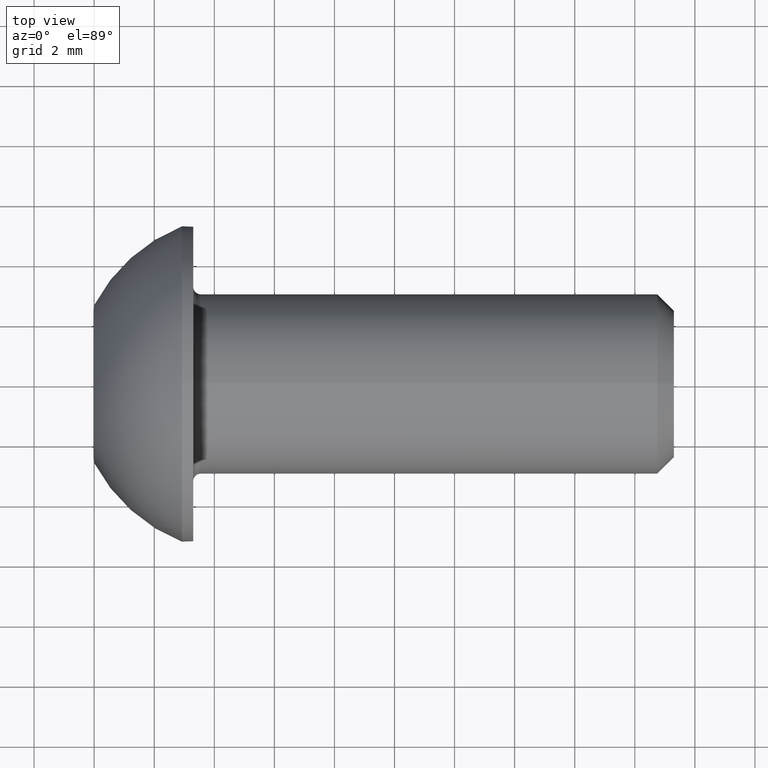
[diagram: clean part render]
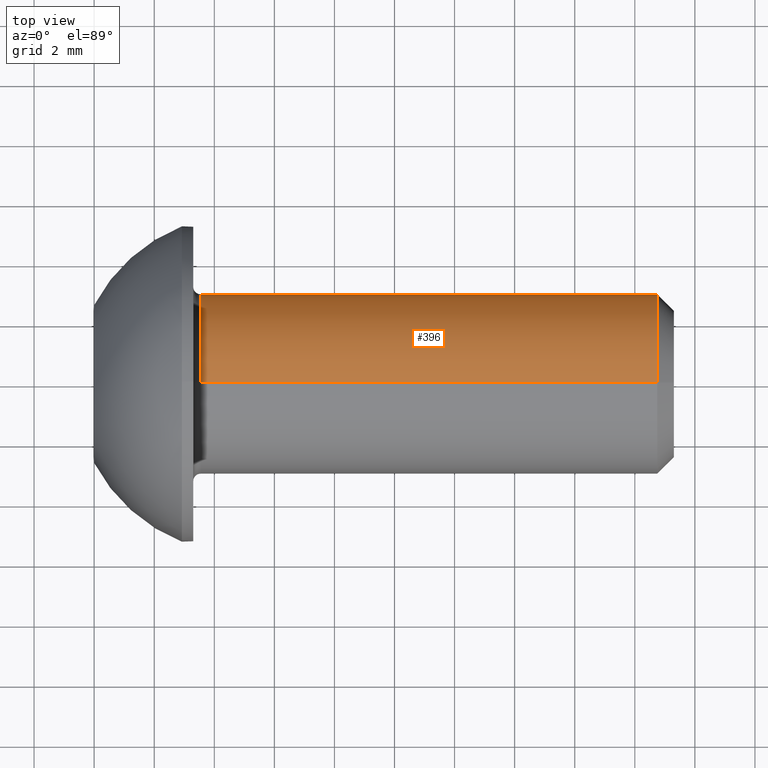
[diagram: same view with one face highlighted and labeled with its STEP entity id]
A machine part, top view. The second image highlights one B-rep face of the part: STEP entity #396.
In plain terms, the highlighted cylindrical surface (partial cylindrical patch) has radius 3 mm, axis along (-1, -0, -0).
Its self-contained STEP definition (entity closure, byte-faithful):
#41 = CYLINDRICAL_SURFACE ( 'NONE', #738, 2.999999999999992895 ) ;
#66 = CARTESIAN_POINT ( 'NONE',  ( 3.550000000000000266, 0.000000000000000000, 2.999999999999992895 ) ) ;
#83 = EDGE_CURVE ( 'NONE', #531, #268, #154, .T. ) ;
#104 = DIRECTION ( 'NONE',  ( 0.000000000000000000, 0.000000000000000000, 1.000000000000000000 ) ) ;
#129 = DIRECTION ( 'NONE',  ( 0.000000000000000000, 0.000000000000000000, 1.000000000000000000 ) ) ;
#138 = CARTESIAN_POINT ( 'NONE',  ( 18.74550000000001759, 3.673940397442050500E-16, -2.999999999999992450 ) ) ;
#145 = ORIENTED_EDGE ( 'NONE', *, *, #599, .F. ) ;
#154 = CIRCLE ( 'NONE', #700, 2.999999999999992895 ) ;
#189 = EDGE_LOOP ( 'NONE', ( #605, #752, #516, #145 ) ) ;
#223 = VERTEX_POINT ( 'NONE', #138 ) ;
#256 = DIRECTION ( 'NONE',  ( -1.000000000000000000, -0.000000000000000000, -0.000000000000000000 ) ) ;
#268 = VERTEX_POINT ( 'NONE', #66 ) ;
#275 = EDGE_CURVE ( 'NONE', #365, #223, #649, .T. ) ;
#279 = AXIS2_PLACEMENT_3D ( 'NONE', #501, #256, #129 ) ;
#322 = CARTESIAN_POINT ( 'NONE',  ( 3.550000000000000266, 0.000000000000000000, 0.000000000000000000 ) ) ;
#352 = DIRECTION ( 'NONE',  ( -1.000000000000000000, -0.000000000000000000, -0.000000000000000000 ) ) ;
#356 = CARTESIAN_POINT ( 'NONE',  ( 0.000000000000000000, 0.000000000000000000, 2.999999999999992895 ) ) ;
#365 = VERTEX_POINT ( 'NONE', #580 ) ;
#396 = ADVANCED_FACE ( 'NONE', ( #520 ), #41, .T. ) ;
#415 = EDGE_CURVE ( 'NONE', #223, #531, #694, .T. ) ;
#456 = VECTOR ( 'NONE', #587, 1000.000000000000000 ) ;
#460 = CARTESIAN_POINT ( 'NONE',  ( 0.000000000000000000, 0.000000000000000000, 0.000000000000000000 ) ) ;
#461 = DIRECTION ( 'NONE',  ( 0.000000000000000000, 0.000000000000000000, 1.000000000000000000 ) ) ;
#501 = CARTESIAN_POINT ( 'NONE',  ( 18.74550000000001759, 0.000000000000000000, 0.000000000000000000 ) ) ;
#513 = CARTESIAN_POINT ( 'NONE',  ( 0.000000000000000000, 3.673940397442050500E-16, -2.999999999999992895 ) ) ;
#516 = ORIENTED_EDGE ( 'NONE', *, *, #83, .T. ) ;
#520 = FACE_OUTER_BOUND ( 'NONE', #189, .T. ) ;
#531 = VERTEX_POINT ( 'NONE', #541 ) ;
#541 = CARTESIAN_POINT ( 'NONE',  ( 3.550000000000000266, 3.673940397442050500E-16, -2.999999999999992895 ) ) ;
#556 = DIRECTION ( 'NONE',  ( 1.000000000000000000, 0.000000000000000000, 0.000000000000000000 ) ) ;
#578 = VECTOR ( 'NONE', #352, 1000.000000000000000 ) ;
#580 = CARTESIAN_POINT ( 'NONE',  ( 18.74550000000001759, 0.000000000000000000, 2.999999999999992450 ) ) ;
#587 = DIRECTION ( 'NONE',  ( -1.000000000000000000, -0.000000000000000000, -0.000000000000000000 ) ) ;
#599 = EDGE_CURVE ( 'NONE', #365, #268, #643, .T. ) ;
#605 = ORIENTED_EDGE ( 'NONE', *, *, #275, .T. ) ;
#643 = LINE ( 'NONE', #356, #456 ) ;
#649 = CIRCLE ( 'NONE', #279, 2.999999999999992450 ) ;
#694 = LINE ( 'NONE', #513, #578 ) ;
#700 = AXIS2_PLACEMENT_3D ( 'NONE', #322, #556, #461 ) ;
#738 = AXIS2_PLACEMENT_3D ( 'NONE', #460, #753, #104 ) ;
#752 = ORIENTED_EDGE ( 'NONE', *, *, #415, .T. ) ;
#753 = DIRECTION ( 'NONE',  ( -1.000000000000000000, -0.000000000000000000, -0.000000000000000000 ) ) ;